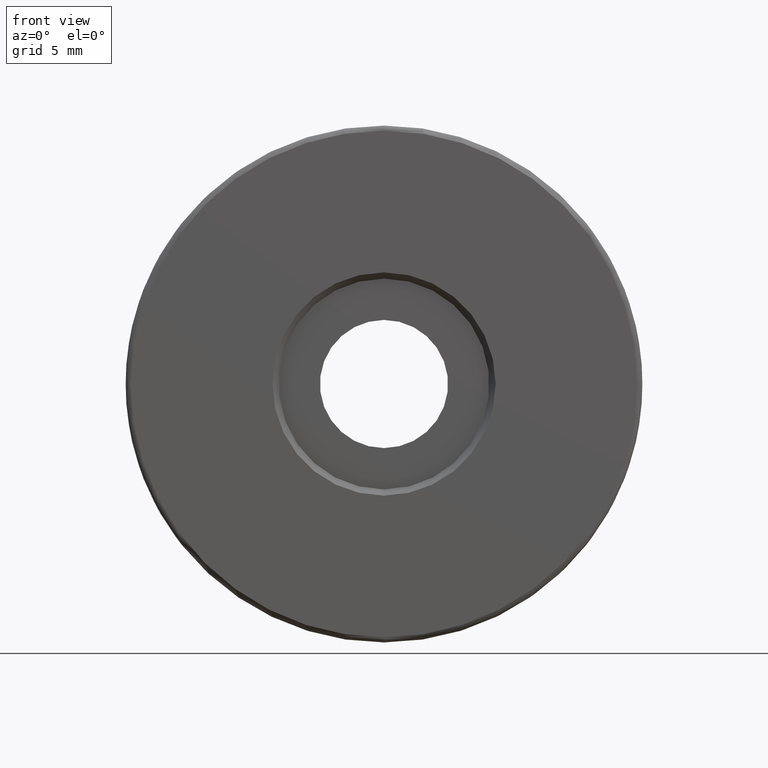
[diagram: clean part render]
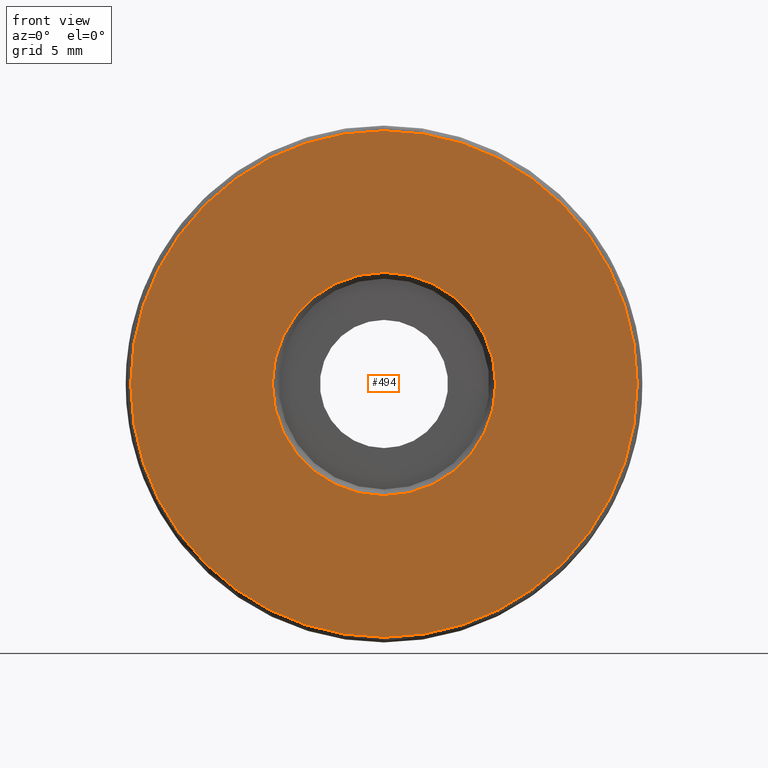
[diagram: same view with one face highlighted and labeled with its STEP entity id]
A machine part, front view. The second image highlights one B-rep face of the part: STEP entity #494.
In plain terms, the highlighted planar face has unit normal (0, 1, 0).
Its self-contained STEP definition (entity closure, byte-faithful):
#10 = EDGE_CURVE ( 'NONE', #267, #476, #139, .T. ) ;
#31 = CARTESIAN_POINT ( 'NONE',  ( -4.682026255059964726, -2.344975976998274980, 25.00000000000000000 ) ) ;
#77 = CIRCLE ( 'NONE', #222, 5.400000000000002132 ) ;
#82 = EDGE_LOOP ( 'NONE', ( #394, #392 ) ) ;
#83 = CARTESIAN_POINT ( 'NONE',  ( -4.682026255059964726, -2.344975976998274980, 25.00000000000000000 ) ) ;
#112 = EDGE_CURVE ( 'NONE', #166, #463, #77, .T. ) ;
#119 = EDGE_CURVE ( 'NONE', #463, #166, #365, .T. ) ;
#127 = ORIENTED_EDGE ( 'NONE', *, *, #112, .T. ) ;
#133 = DIRECTION ( 'NONE',  ( 0.0000000000000000000, 0.0000000000000000000, 1.000000000000000000 ) ) ;
#137 = CARTESIAN_POINT ( 'NONE',  ( -4.682026255059964726, -2.344975976998274980, 25.00000000000000000 ) ) ;
#139 = CIRCLE ( 'NONE', #508, 12.25000000000000355 ) ;
#142 = CARTESIAN_POINT ( 'NONE',  ( -4.682026255059964726, -2.344975976998274980, 19.59999999999999787 ) ) ;
#152 = EDGE_LOOP ( 'NONE', ( #127, #471 ) ) ;
#160 = CARTESIAN_POINT ( 'NONE',  ( -4.682026255059964726, -2.344975976998274980, 25.00000000000000000 ) ) ;
#162 = CARTESIAN_POINT ( 'NONE',  ( -4.682026255059963837, -2.344975976998274980, 30.40000000000000213 ) ) ;
#166 = VERTEX_POINT ( 'NONE', #142 ) ;
#177 = DIRECTION ( 'NONE',  ( 0.0000000000000000000, 1.000000000000000000, 0.0000000000000000000 ) ) ;
#183 = DIRECTION ( 'NONE',  ( -0.0000000000000000000, -1.000000000000000000, -0.0000000000000000000 ) ) ;
#198 = FACE_OUTER_BOUND ( 'NONE', #82, .T. ) ;
#222 = AXIS2_PLACEMENT_3D ( 'NONE', #499, #177, #133 ) ;
#242 = PLANE ( 'NONE',  #473 ) ;
#253 = CIRCLE ( 'NONE', #307, 12.25000000000000355 ) ;
#261 = CARTESIAN_POINT ( 'NONE',  ( -4.682026255059962949, -2.344975976998274980, 12.75000000000000178 ) ) ;
#267 = VERTEX_POINT ( 'NONE', #261 ) ;
#307 = AXIS2_PLACEMENT_3D ( 'NONE', #31, #183, #342 ) ;
#318 = DIRECTION ( 'NONE',  ( -0.0000000000000000000, -1.000000000000000000, -0.0000000000000000000 ) ) ;
#333 = DIRECTION ( 'NONE',  ( 0.0000000000000000000, 1.000000000000000000, 0.0000000000000000000 ) ) ;
#342 = DIRECTION ( 'NONE',  ( 0.0000000000000000000, 0.0000000000000000000, 1.000000000000000000 ) ) ;
#354 = DIRECTION ( 'NONE',  ( 0.0000000000000000000, 1.000000000000000000, 0.0000000000000000000 ) ) ;
#356 = DIRECTION ( 'NONE',  ( 0.0000000000000000000, 0.0000000000000000000, 1.000000000000000000 ) ) ;
#359 = EDGE_CURVE ( 'NONE', #476, #267, #253, .T. ) ;
#365 = CIRCLE ( 'NONE', #421, 5.400000000000002132 ) ;
#392 = ORIENTED_EDGE ( 'NONE', *, *, #10, .T. ) ;
#393 = FACE_BOUND ( 'NONE', #152, .T. ) ;
#394 = ORIENTED_EDGE ( 'NONE', *, *, #359, .T. ) ;
#404 = CARTESIAN_POINT ( 'NONE',  ( -4.682026255059964726, -2.344975976998274980, 37.25000000000000711 ) ) ;
#421 = AXIS2_PLACEMENT_3D ( 'NONE', #137, #333, #456 ) ;
#437 = DIRECTION ( 'NONE',  ( 0.0000000000000000000, -0.0000000000000000000, 1.000000000000000000 ) ) ;
#456 = DIRECTION ( 'NONE',  ( 0.0000000000000000000, 0.0000000000000000000, 1.000000000000000000 ) ) ;
#463 = VERTEX_POINT ( 'NONE', #162 ) ;
#471 = ORIENTED_EDGE ( 'NONE', *, *, #119, .T. ) ;
#473 = AXIS2_PLACEMENT_3D ( 'NONE', #160, #354, #437 ) ;
#476 = VERTEX_POINT ( 'NONE', #404 ) ;
#494 = ADVANCED_FACE ( 'NONE', ( #198, #393 ), #242, .F. ) ;
#499 = CARTESIAN_POINT ( 'NONE',  ( -4.682026255059964726, -2.344975976998274980, 25.00000000000000000 ) ) ;
#508 = AXIS2_PLACEMENT_3D ( 'NONE', #83, #318, #356 ) ;